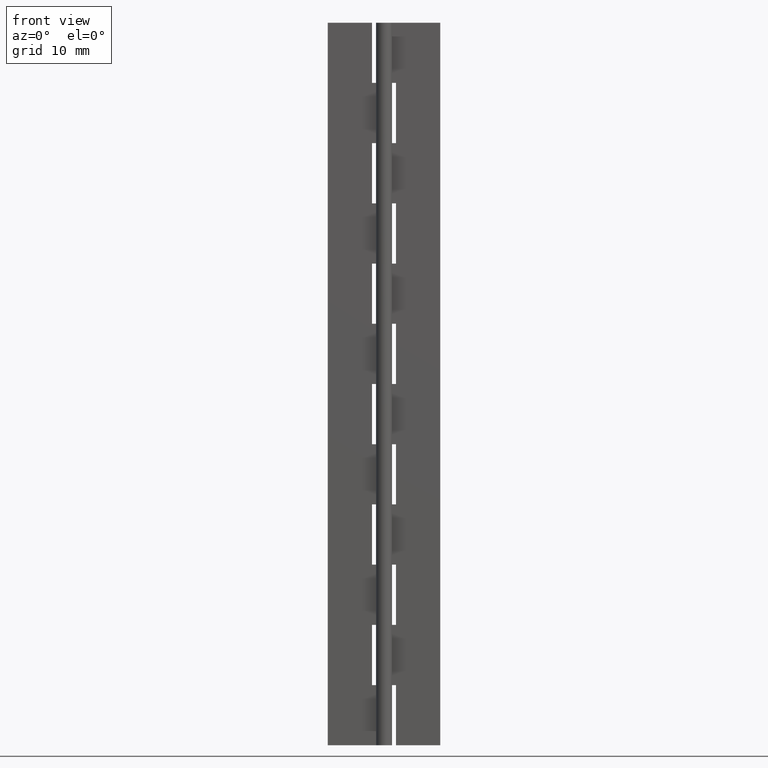
[diagram: clean part render]
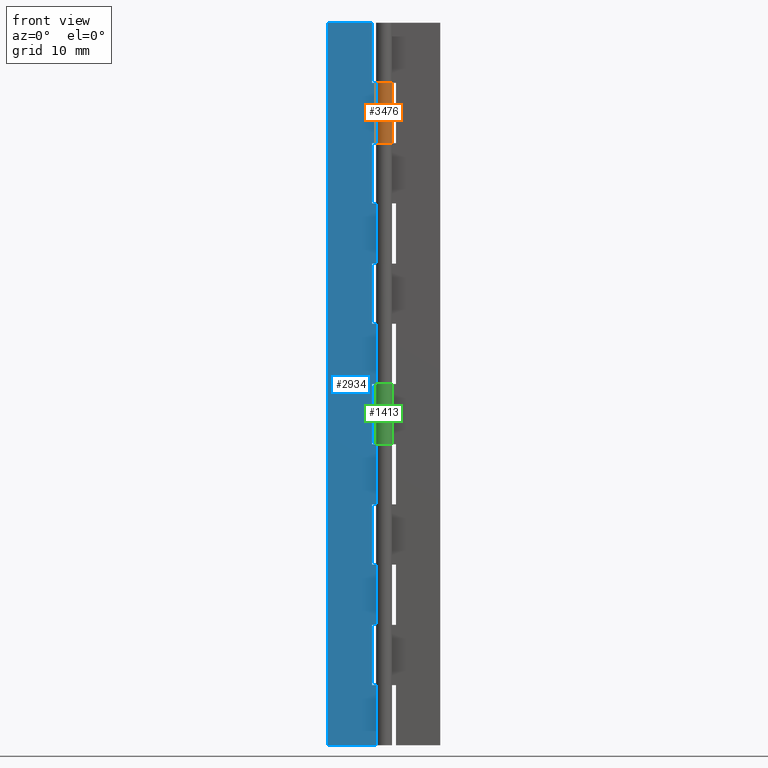
[diagram: same view with three faces highlighted in distinct colors, each labeled with its STEP entity id]
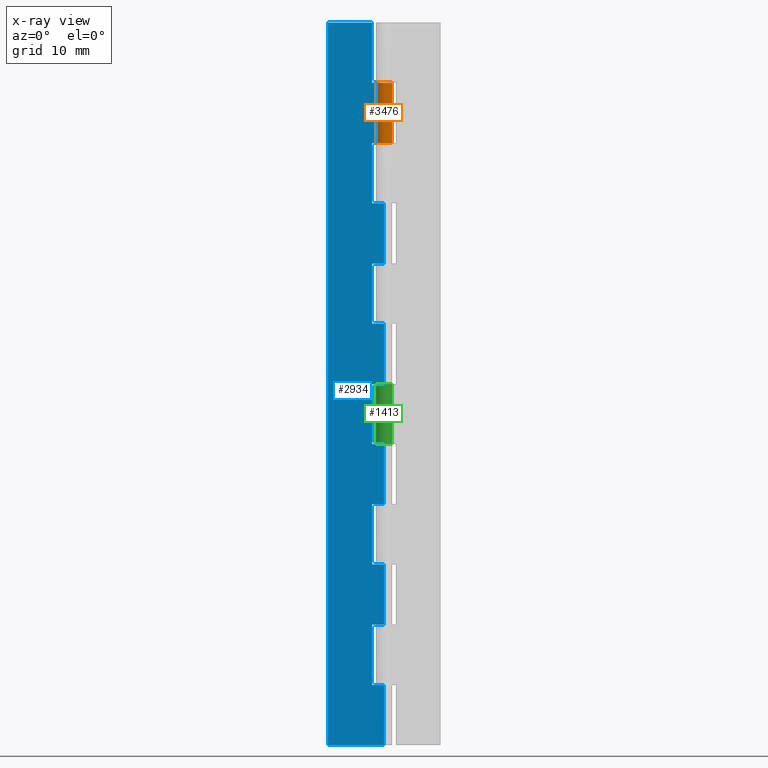
[diagram: x-ray of the same camera — body ghosted, the three highlighted faces saturated]
A machine part, front view with three faces highlighted in distinct colors.
The next image is the same camera in x-ray (body ghosted, the three faces saturated) — at least one of them is partly hidden behind the body in this view.
Their STEP definitions:

[orange] entity #3476 — the highlighted face is a freeform B-spline surface patch.
#1822=CARTESIAN_POINT('',(-0.893028554974588,0.450000000000000,82.500000000000000));
#1823=VERTEX_POINT('',#1822);
#1824=CARTESIAN_POINT('',(0.0,1.0,82.500000000000000));
#1825=VERTEX_POINT('',#1824);
#1826=CARTESIAN_POINT('',(-0.893028554974587,0.450000000000000,82.500000000000000));
#1827=CARTESIAN_POINT('',(-1.233273978153613,-0.225219730218403,82.500000000000000));
#1828=CARTESIAN_POINT('',(-0.676333153176143,-0.736595863357117,82.500000000000000));
#1829=CARTESIAN_POINT('',(-0.119392328198674,-1.247971996495830,82.500000000000000));
#1830=CARTESIAN_POINT('',(0.524404424085075,-0.851469318296321,82.500000000000000));
#1831=CARTESIAN_POINT('',(1.168201176368825,-0.454966640096811,82.500000000000000));
#1832=CARTESIAN_POINT('',(0.962151058383329,0.272516679951594,82.500000000000000));
#1833=CARTESIAN_POINT('',(0.756100940397833,1.0,82.500000000000000));
#1834=CARTESIAN_POINT('',(0.0,1.0,82.500000000000000));
#1842=(BOUNDED_CURVE()B_SPLINE_CURVE(2,(#1826,#1827,#1828,#1829,#1830,#1831,#1832,#1833,#1834),.UNSPECIFIED.,.F.,.U.)B_SPLINE_CURVE_WITH_KNOTS((3,2,2,2,3),(0.0,0.250000000000000,0.500000000000000,0.750000000000000,1.0),.UNSPECIFIED.)CURVE()GEOMETRIC_REPRESENTATION_ITEM()RATIONAL_B_SPLINE_CURVE((1.0,0.797658034483323,1.0,0.797658034483323,1.0,0.797658034483323,1.0,0.797658034483323,1.0))REPRESENTATION_ITEM(''));
#1843=EDGE_CURVE('',#1823,#1825,#1842,.T.);
#1892=CARTESIAN_POINT('',(0.0,1.0,75.0));
#1893=VERTEX_POINT('',#1892);
#1894=CARTESIAN_POINT('',(-0.893028554974588,0.450000000000000,75.0));
#1895=VERTEX_POINT('',#1894);
#1896=CARTESIAN_POINT('',(0.0,1.0,75.0));
#1897=CARTESIAN_POINT('',(0.756100940397833,1.0,75.0));
#1898=CARTESIAN_POINT('',(0.962151058383329,0.272516679951595,75.0));
#1899=CARTESIAN_POINT('',(1.168201176368825,-0.454966640096810,75.0));
#1900=CARTESIAN_POINT('',(0.524404424085076,-0.851469318296320,75.0));
#1901=CARTESIAN_POINT('',(-0.119392328198672,-1.247971996495830,75.0));
#1902=CARTESIAN_POINT('',(-0.676333153176142,-0.736595863357117,75.0));
#1903=CARTESIAN_POINT('',(-1.233273978153612,-0.225219730218405,75.0));
#1904=CARTESIAN_POINT('',(-0.893028554974588,0.449999999999999,75.0));
#1912=(BOUNDED_CURVE()B_SPLINE_CURVE(2,(#1896,#1897,#1898,#1899,#1900,#1901,#1902,#1903,#1904),.UNSPECIFIED.,.F.,.U.)B_SPLINE_CURVE_WITH_KNOTS((3,2,2,2,3),(0.0,0.250000000000000,0.500000000000000,0.750000000000000,1.0),.UNSPECIFIED.)CURVE()GEOMETRIC_REPRESENTATION_ITEM()RATIONAL_B_SPLINE_CURVE((1.0,0.797658034483323,1.0,0.797658034483323,1.0,0.797658034483323,1.0,0.797658034483323,1.0))REPRESENTATION_ITEM(''));
#1913=EDGE_CURVE('',#1893,#1895,#1912,.T.);
#2976=CARTESIAN_POINT('',(-0.893028554974588,0.450000000000000,82.500000000000000));
#2977=CARTESIAN_POINT('',(-0.893028554974588,0.450000000000000,75.0));
#2978=QUASI_UNIFORM_CURVE('',1,(#2976,#2977),.UNSPECIFIED.,.F.,.U.);
#2979=EDGE_CURVE('',#1823,#1895,#2978,.T.);
#3027=CARTESIAN_POINT('',(0.0,1.0,82.500000000000000));
#3028=CARTESIAN_POINT('',(0.0,1.0,75.0));
#3029=QUASI_UNIFORM_CURVE('',1,(#3027,#3028),.UNSPECIFIED.,.F.,.U.);
#3030=EDGE_CURVE('',#1825,#1893,#3029,.T.);
#3448=CARTESIAN_POINT('',(-0.889067610209338,0.457775910764923,82.687500000000014));
#3449=CARTESIAN_POINT('',(-0.889067610209338,0.457775910764923,74.807812499999997));
#3450=CARTESIAN_POINT('',(-1.434623696466522,-0.601773607761204,82.687500000000028));
#3451=CARTESIAN_POINT('',(-1.434623696466522,-0.601773607761204,74.807812499999997));
#3452=CARTESIAN_POINT('',(-0.296436295727977,-0.955052628170340,82.687500000000014));
#3453=CARTESIAN_POINT('',(-0.296436295727977,-0.955052628170340,74.807812499999997));
#3454=CARTESIAN_POINT('',(0.841751105010568,-1.308331648579477,82.687500000000028));
#3455=CARTESIAN_POINT('',(0.841751105010568,-1.308331648579477,74.807812499999997));
#3456=CARTESIAN_POINT('',(0.992018855304335,-0.126089613849340,82.687500000000014));
#3457=CARTESIAN_POINT('',(0.992018855304335,-0.126089613849340,74.807812499999997));
#3458=CARTESIAN_POINT('',(1.142286605598103,1.056152420880797,82.687500000000028));
#3459=CARTESIAN_POINT('',(1.142286605598103,1.056152420880797,74.807812499999997));
#3460=CARTESIAN_POINT('',(-0.048088237141686,0.998843091505670,82.687500000000014));
#3461=CARTESIAN_POINT('',(-0.048088237141686,0.998843091505670,74.807812499999997));
#3469=(BOUNDED_SURFACE()B_SPLINE_SURFACE(1,2,((#3448,#3450,#3452,#3454,#3456,#3458,#3460),(#3449,#3451,#3453,#3455,#3457,#3459,#3461)),.UNSPECIFIED.,.F.,.F.,.U.)B_SPLINE_SURFACE_WITH_KNOTS((2,2),(3,2,2,3),(0.0,7.879687500000023),(0.0,1.0,2.0,3.0),.UNSPECIFIED.)GEOMETRIC_REPRESENTATION_ITEM()RATIONAL_B_SPLINE_SURFACE(((1.0,0.642787609686539,1.0,0.642787609686539,1.0,0.642787609686539,1.0),(1.0,0.642787609686539,1.0,0.642787609686539,1.0,0.642787609686539,1.0)))REPRESENTATION_ITEM('')SURFACE());
#3470=ORIENTED_EDGE('',*,*,#1843,.F.);
#3471=ORIENTED_EDGE('',*,*,#2979,.T.);
#3472=ORIENTED_EDGE('',*,*,#1913,.F.);
#3473=ORIENTED_EDGE('',*,*,#3030,.F.);
#3474=EDGE_LOOP('',(#3470,#3471,#3472,#3473));
#3475=FACE_OUTER_BOUND('',#3474,.T.);
#3476=ADVANCED_FACE('',(#3475),#3469,.T.);

[blue] entity #2934 — the highlighted face is a freeform B-spline surface patch.
#1786=CARTESIAN_POINT('',(-1.500000000000000,0.499999999999945,90.0));
#1787=VERTEX_POINT('',#1786);
#1788=CARTESIAN_POINT('',(-1.500000000000000,0.499999999999945,82.500000000000000));
#1789=VERTEX_POINT('',#1788);
#1790=CARTESIAN_POINT('',(-1.500000000000000,0.499999999999945,90.0));
#1791=CARTESIAN_POINT('',(-1.500000000000000,0.499999999999945,82.500000000000000));
#1792=QUASI_UNIFORM_CURVE('',1,(#1790,#1791),.UNSPECIFIED.,.F.,.U.);
#1793=EDGE_CURVE('',#1787,#1789,#1792,.T.);
#1851=CARTESIAN_POINT('',(3.061230E-017,0.500000000000000,82.500000000000000));
#1852=VERTEX_POINT('',#1851);
#1853=CARTESIAN_POINT('',(-1.500000000000000,0.499999999999945,82.500000000000000));
#1854=CARTESIAN_POINT('',(3.061230E-017,0.500000000000000,82.500000000000000));
#1855=QUASI_UNIFORM_CURVE('',1,(#1853,#1854),.UNSPECIFIED.,.F.,.U.);
#1856=EDGE_CURVE('',#1789,#1852,#1855,.T.);
#1922=CARTESIAN_POINT('',(3.061516E-017,0.500000000000000,75.0));
#1923=VERTEX_POINT('',#1922);
#1943=CARTESIAN_POINT('',(-1.500000000000000,0.499999999999945,75.0));
#1944=VERTEX_POINT('',#1943);
#1945=CARTESIAN_POINT('',(3.061516E-017,0.500000000000000,75.0));
#1946=CARTESIAN_POINT('',(-1.500000000000000,0.499999999999945,75.0));
#1947=QUASI_UNIFORM_CURVE('',1,(#1945,#1946),.UNSPECIFIED.,.F.,.U.);
#1948=EDGE_CURVE('',#1923,#1944,#1947,.T.);
#1970=CARTESIAN_POINT('',(-1.500000000000000,0.499999999999945,67.500000000000000));
#1971=VERTEX_POINT('',#1970);
#1972=CARTESIAN_POINT('',(-1.500000000000000,0.499999999999945,75.0));
#1973=CARTESIAN_POINT('',(-1.500000000000000,0.499999999999945,67.500000000000000));
#1974=QUASI_UNIFORM_CURVE('',1,(#1972,#1973),.UNSPECIFIED.,.F.,.U.);
#1975=EDGE_CURVE('',#1944,#1971,#1974,.T.);
#2027=CARTESIAN_POINT('',(3.061230E-017,0.500000000000000,67.500000000000000));
#2028=VERTEX_POINT('',#2027);
#2029=CARTESIAN_POINT('',(-1.500000000000000,0.499999999999945,67.500000000000000));
#2030=CARTESIAN_POINT('',(3.061230E-017,0.500000000000000,67.500000000000000));
#2031=QUASI_UNIFORM_CURVE('',1,(#2029,#2030),.UNSPECIFIED.,.F.,.U.);
#2032=EDGE_CURVE('',#1971,#2028,#2031,.T.);
#2098=CARTESIAN_POINT('',(3.061516E-017,0.500000000000000,60.0));
#2099=VERTEX_POINT('',#2098);
#2119=CARTESIAN_POINT('',(-1.500000000000000,0.499999999999945,60.0));
#2120=VERTEX_POINT('',#2119);
#2121=CARTESIAN_POINT('',(3.061516E-017,0.500000000000000,60.0));
#2122=CARTESIAN_POINT('',(-1.500000000000000,0.499999999999945,60.0));
#2123=QUASI_UNIFORM_CURVE('',1,(#2121,#2122),.UNSPECIFIED.,.F.,.U.);
#2124=EDGE_CURVE('',#2099,#2120,#2123,.T.);
#2146=CARTESIAN_POINT('',(-1.500000000000000,0.499999999999945,52.500000000000000));
#2147=VERTEX_POINT('',#2146);
#2148=CARTESIAN_POINT('',(-1.500000000000000,0.499999999999945,60.0));
#2149=CARTESIAN_POINT('',(-1.500000000000000,0.499999999999945,52.500000000000000));
#2150=QUASI_UNIFORM_CURVE('',1,(#2148,#2149),.UNSPECIFIED.,.F.,.U.);
#2151=EDGE_CURVE('',#2120,#2147,#2150,.T.);
#2203=CARTESIAN_POINT('',(3.061230E-017,0.500000000000000,52.500000000000000));
#2204=VERTEX_POINT('',#2203);
#2205=CARTESIAN_POINT('',(-1.500000000000000,0.499999999999945,52.500000000000000));
#2206=CARTESIAN_POINT('',(3.061230E-017,0.500000000000000,52.500000000000000));
#2207=QUASI_UNIFORM_CURVE('',1,(#2205,#2206),.UNSPECIFIED.,.F.,.U.);
#2208=EDGE_CURVE('',#2147,#2204,#2207,.T.);
#2274=CARTESIAN_POINT('',(3.061516E-017,0.500000000000000,45.0));
#2275=VERTEX_POINT('',#2274);
#2295=CARTESIAN_POINT('',(-1.500000000000000,0.499999999999945,45.0));
#2296=VERTEX_POINT('',#2295);
#2297=CARTESIAN_POINT('',(3.061516E-017,0.500000000000000,45.0));
#2298=CARTESIAN_POINT('',(-1.500000000000000,0.499999999999945,45.0));
#2299=QUASI_UNIFORM_CURVE('',1,(#2297,#2298),.UNSPECIFIED.,.F.,.U.);
#2300=EDGE_CURVE('',#2275,#2296,#2299,.T.);
#2322=CARTESIAN_POINT('',(-1.500000000000000,0.499999999999945,37.500000000000000));
#2323=VERTEX_POINT('',#2322);
#2324=CARTESIAN_POINT('',(-1.500000000000000,0.499999999999945,45.0));
#2325=CARTESIAN_POINT('',(-1.500000000000000,0.499999999999945,37.500000000000000));
#2326=QUASI_UNIFORM_CURVE('',1,(#2324,#2325),.UNSPECIFIED.,.F.,.U.);
#2327=EDGE_CURVE('',#2296,#2323,#2326,.T.);
#2379=CARTESIAN_POINT('',(3.061230E-017,0.500000000000000,37.500000000000000));
#2380=VERTEX_POINT('',#2379);
#2381=CARTESIAN_POINT('',(-1.500000000000000,0.499999999999945,37.500000000000000));
#2382=CARTESIAN_POINT('',(3.061230E-017,0.500000000000000,37.500000000000000));
#2383=QUASI_UNIFORM_CURVE('',1,(#2381,#2382),.UNSPECIFIED.,.F.,.U.);
#2384=EDGE_CURVE('',#2323,#2380,#2383,.T.);
#2450=CARTESIAN_POINT('',(3.061516E-017,0.500000000000000,30.0));
#2451=VERTEX_POINT('',#2450);
#2471=CARTESIAN_POINT('',(-1.500000000000000,0.499999999999945,30.0));
#2472=VERTEX_POINT('',#2471);
#2473=CARTESIAN_POINT('',(3.061516E-017,0.500000000000000,30.0));
#2474=CARTESIAN_POINT('',(-1.500000000000000,0.499999999999945,30.0));
#2475=QUASI_UNIFORM_CURVE('',1,(#2473,#2474),.UNSPECIFIED.,.F.,.U.);
#2476=EDGE_CURVE('',#2451,#2472,#2475,.T.);
#2498=CARTESIAN_POINT('',(-1.500000000000000,0.499999999999945,22.500000000000000));
#2499=VERTEX_POINT('',#2498);
#2500=CARTESIAN_POINT('',(-1.500000000000000,0.499999999999945,30.0));
#2501=CARTESIAN_POINT('',(-1.500000000000000,0.499999999999945,22.500000000000000));
#2502=QUASI_UNIFORM_CURVE('',1,(#2500,#2501),.UNSPECIFIED.,.F.,.U.);
#2503=EDGE_CURVE('',#2472,#2499,#2502,.T.);
#2555=CARTESIAN_POINT('',(3.061230E-017,0.500000000000000,22.500000000000000));
#2556=VERTEX_POINT('',#2555);
#2557=CARTESIAN_POINT('',(-1.500000000000000,0.499999999999945,22.500000000000000));
#2558=CARTESIAN_POINT('',(3.061230E-017,0.500000000000000,22.500000000000000));
#2559=QUASI_UNIFORM_CURVE('',1,(#2557,#2558),.UNSPECIFIED.,.F.,.U.);
#2560=EDGE_CURVE('',#2499,#2556,#2559,.T.);
#2626=CARTESIAN_POINT('',(3.061516E-017,0.500000000000000,15.0));
#2627=VERTEX_POINT('',#2626);
#2647=CARTESIAN_POINT('',(-1.500000000000000,0.499999999999945,15.0));
#2648=VERTEX_POINT('',#2647);
#2649=CARTESIAN_POINT('',(3.061516E-017,0.500000000000000,15.0));
#2650=CARTESIAN_POINT('',(-1.500000000000000,0.499999999999945,15.0));
#2651=QUASI_UNIFORM_CURVE('',1,(#2649,#2650),.UNSPECIFIED.,.F.,.U.);
#2652=EDGE_CURVE('',#2627,#2648,#2651,.T.);
#2674=CARTESIAN_POINT('',(-1.500000000000000,0.499999999999945,7.500000000000000));
#2675=VERTEX_POINT('',#2674);
#2676=CARTESIAN_POINT('',(-1.500000000000000,0.499999999999945,15.0));
#2677=CARTESIAN_POINT('',(-1.500000000000000,0.499999999999945,7.500000000000000));
#2678=QUASI_UNIFORM_CURVE('',1,(#2676,#2677),.UNSPECIFIED.,.F.,.U.);
#2679=EDGE_CURVE('',#2648,#2675,#2678,.T.);
#2731=CARTESIAN_POINT('',(3.061230E-017,0.500000000000000,7.500000000000000));
#2732=VERTEX_POINT('',#2731);
#2733=CARTESIAN_POINT('',(-1.500000000000000,0.499999999999945,7.500000000000000));
#2734=CARTESIAN_POINT('',(3.061230E-017,0.500000000000000,7.500000000000000));
#2735=QUASI_UNIFORM_CURVE('',1,(#2733,#2734),.UNSPECIFIED.,.F.,.U.);
#2736=EDGE_CURVE('',#2675,#2732,#2735,.T.);
#2772=CARTESIAN_POINT('',(-7.0,0.500000000000000,0.0));
#2773=VERTEX_POINT('',#2772);
#2816=CARTESIAN_POINT('',(3.061516E-017,0.500000000000000,0.0));
#2817=VERTEX_POINT('',#2816);
#2837=CARTESIAN_POINT('',(3.061516E-017,0.500000000000000,0.0));
#2838=CARTESIAN_POINT('',(-7.0,0.500000000000000,0.0));
#2839=QUASI_UNIFORM_CURVE('',1,(#2837,#2838),.UNSPECIFIED.,.F.,.U.);
#2840=EDGE_CURVE('',#2817,#2773,#2839,.T.);
#2850=CARTESIAN_POINT('',(-7.0,0.500000000000000,90.0));
#2851=VERTEX_POINT('',#2850);
#2852=CARTESIAN_POINT('',(-1.500000000000000,0.499999999999945,90.0));
#2853=CARTESIAN_POINT('',(-7.0,0.500000000000000,90.0));
#2854=QUASI_UNIFORM_CURVE('',1,(#2852,#2853),.UNSPECIFIED.,.F.,.U.);
#2855=EDGE_CURVE('',#1787,#2851,#2854,.T.);
#2873=CARTESIAN_POINT('',(-7.349649986432643,0.500000000000000,94.495499825562533));
#2874=CARTESIAN_POINT('',(-7.349649986432643,0.500000000000000,-4.495502239550651));
#2875=CARTESIAN_POINT('',(0.349650174187273,0.500000000000000,94.495499825562533));
#2876=CARTESIAN_POINT('',(0.349650174187273,0.500000000000000,-4.495502239550651));
#2877=B_SPLINE_SURFACE_WITH_KNOTS('',1,1,((#2873,#2875),(#2874,#2876)),.UNSPECIFIED.,.F.,.F.,.U.,(2,2),(2,2),(0.0,98.991002065113179),(0.0,7.699300160619915),.UNSPECIFIED.);
#2878=ORIENTED_EDGE('',*,*,#1856,.F.);
#2879=ORIENTED_EDGE('',*,*,#1793,.F.);
#2880=ORIENTED_EDGE('',*,*,#2855,.T.);
#2881=CARTESIAN_POINT('',(-7.0,0.500000000000000,90.0));
#2882=CARTESIAN_POINT('',(-7.0,0.500000000000000,0.0));
#2883=QUASI_UNIFORM_CURVE('',1,(#2881,#2882),.UNSPECIFIED.,.F.,.U.);
#2884=EDGE_CURVE('',#2851,#2773,#2883,.T.);
#2885=ORIENTED_EDGE('',*,*,#2884,.T.);
#2886=ORIENTED_EDGE('',*,*,#2840,.F.);
#2887=CARTESIAN_POINT('',(3.061230E-017,0.500000000000000,7.500000000000000));
#2888=CARTESIAN_POINT('',(3.061516E-017,0.500000000000000,0.0));
#2889=QUASI_UNIFORM_CURVE('',1,(#2887,#2888),.UNSPECIFIED.,.F.,.U.);
#2890=EDGE_CURVE('',#2732,#2817,#2889,.T.);
#2891=ORIENTED_EDGE('',*,*,#2890,.F.);
#2892=ORIENTED_EDGE('',*,*,#2736,.F.);
#2893=ORIENTED_EDGE('',*,*,#2679,.F.);
#2894=ORIENTED_EDGE('',*,*,#2652,.F.);
#2895=CARTESIAN_POINT('',(3.061230E-017,0.500000000000000,22.500000000000000));
#2896=CARTESIAN_POINT('',(3.061516E-017,0.500000000000000,15.0));
#2897=QUASI_UNIFORM_CURVE('',1,(#2895,#2896),.UNSPECIFIED.,.F.,.U.);
#2898=EDGE_CURVE('',#2556,#2627,#2897,.T.);
#2899=ORIENTED_EDGE('',*,*,#2898,.F.);
#2900=ORIENTED_EDGE('',*,*,#2560,.F.);
#2901=ORIENTED_EDGE('',*,*,#2503,.F.);
#2902=ORIENTED_EDGE('',*,*,#2476,.F.);
#2903=CARTESIAN_POINT('',(3.061230E-017,0.500000000000000,37.500000000000000));
#2904=CARTESIAN_POINT('',(3.061516E-017,0.500000000000000,30.0));
#2905=QUASI_UNIFORM_CURVE('',1,(#2903,#2904),.UNSPECIFIED.,.F.,.U.);
#2906=EDGE_CURVE('',#2380,#2451,#2905,.T.);
#2907=ORIENTED_EDGE('',*,*,#2906,.F.);
#2908=ORIENTED_EDGE('',*,*,#2384,.F.);
#2909=ORIENTED_EDGE('',*,*,#2327,.F.);
#2910=ORIENTED_EDGE('',*,*,#2300,.F.);
#2911=CARTESIAN_POINT('',(3.061230E-017,0.500000000000000,52.500000000000000));
#2912=CARTESIAN_POINT('',(3.061516E-017,0.500000000000000,45.0));
#2913=QUASI_UNIFORM_CURVE('',1,(#2911,#2912),.UNSPECIFIED.,.F.,.U.);
#2914=EDGE_CURVE('',#2204,#2275,#2913,.T.);
#2915=ORIENTED_EDGE('',*,*,#2914,.F.);
#2916=ORIENTED_EDGE('',*,*,#2208,.F.);
#2917=ORIENTED_EDGE('',*,*,#2151,.F.);
#2918=ORIENTED_EDGE('',*,*,#2124,.F.);
#2919=CARTESIAN_POINT('',(3.061230E-017,0.500000000000000,67.500000000000000));
#2920=CARTESIAN_POINT('',(3.061516E-017,0.500000000000000,60.0));
#2921=QUASI_UNIFORM_CURVE('',1,(#2919,#2920),.UNSPECIFIED.,.F.,.U.);
#2922=EDGE_CURVE('',#2028,#2099,#2921,.T.);
#2923=ORIENTED_EDGE('',*,*,#2922,.F.);
#2924=ORIENTED_EDGE('',*,*,#2032,.F.);
#2925=ORIENTED_EDGE('',*,*,#1975,.F.);
#2926=ORIENTED_EDGE('',*,*,#1948,.F.);
#2927=CARTESIAN_POINT('',(3.061230E-017,0.500000000000000,82.500000000000000));
#2928=CARTESIAN_POINT('',(3.061516E-017,0.500000000000000,75.0));
#2929=QUASI_UNIFORM_CURVE('',1,(#2927,#2928),.UNSPECIFIED.,.F.,.U.);
#2930=EDGE_CURVE('',#1852,#1923,#2929,.T.);
#2931=ORIENTED_EDGE('',*,*,#2930,.F.);
#2932=EDGE_LOOP('',(#2878,#2879,#2880,#2885,#2886,#2891,#2892,#2893,#2894,#2899,#2900,#2901,#2902,#2907,#2908,#2909,#2910,#2915,#2916,#2917,#2918,#2923,#2924,#2925,#2926,#2931));
#2933=FACE_OUTER_BOUND('',#2932,.T.);
#2934=ADVANCED_FACE('',(#2933),#2877,.T.);

[green] entity #1413 — the highlighted face is a freeform B-spline surface patch.
#507=CARTESIAN_POINT('',(0.0,1.0,45.0));
#508=VERTEX_POINT('',#507);
#509=CARTESIAN_POINT('',(0.893028554974594,0.449999999999989,45.0));
#510=VERTEX_POINT('',#509);
#511=CARTESIAN_POINT('',(0.0,1.0,45.0));
#512=CARTESIAN_POINT('',(-0.756100940397830,1.0,45.0));
#513=CARTESIAN_POINT('',(-0.962151058383328,0.272516679951598,45.0));
#514=CARTESIAN_POINT('',(-1.168201176368826,-0.454966640096804,45.0));
#515=CARTESIAN_POINT('',(-0.524404424085081,-0.851469318296317,45.0));
#516=CARTESIAN_POINT('',(0.119392328198663,-1.247971996495829,45.0));
#517=CARTESIAN_POINT('',(0.676333153176136,-0.736595863357123,45.0));
#518=CARTESIAN_POINT('',(1.233273978153608,-0.225219730218417,45.0));
#519=CARTESIAN_POINT('',(0.893028554974594,0.449999999999988,45.0));
#527=(BOUNDED_CURVE()B_SPLINE_CURVE(2,(#511,#512,#513,#514,#515,#516,#517,#518,#519),.UNSPECIFIED.,.F.,.U.)B_SPLINE_CURVE_WITH_KNOTS((3,2,2,2,3),(0.0,0.250000000000000,0.500000000000000,0.750000000000000,1.0),.UNSPECIFIED.)CURVE()GEOMETRIC_REPRESENTATION_ITEM()RATIONAL_B_SPLINE_CURVE((1.0,0.797658034483324,1.0,0.797658034483324,1.0,0.797658034483324,1.0,0.797658034483324,1.0))REPRESENTATION_ITEM(''));
#528=EDGE_CURVE('',#508,#510,#527,.T.);
#577=CARTESIAN_POINT('',(0.893028554974594,0.449999999999989,37.500000000000000));
#578=VERTEX_POINT('',#577);
#579=CARTESIAN_POINT('',(0.0,1.0,37.500000000000000));
#580=VERTEX_POINT('',#579);
#581=CARTESIAN_POINT('',(0.893028554974593,0.449999999999989,37.500000000000000));
#582=CARTESIAN_POINT('',(1.233273978153608,-0.225219730218417,37.500000000000007));
#583=CARTESIAN_POINT('',(0.676333153176136,-0.736595863357123,37.500000000000000));
#584=CARTESIAN_POINT('',(0.119392328198664,-1.247971996495829,37.500000000000007));
#585=CARTESIAN_POINT('',(-0.524404424085081,-0.851469318296317,37.500000000000000));
#586=CARTESIAN_POINT('',(-1.168201176368826,-0.454966640096804,37.500000000000007));
#587=CARTESIAN_POINT('',(-0.962151058383328,0.272516679951598,37.500000000000000));
#588=CARTESIAN_POINT('',(-0.756100940397831,1.0,37.500000000000007));
#589=CARTESIAN_POINT('',(0.0,1.0,37.500000000000000));
#597=(BOUNDED_CURVE()B_SPLINE_CURVE(2,(#581,#582,#583,#584,#585,#586,#587,#588,#589),.UNSPECIFIED.,.F.,.U.)B_SPLINE_CURVE_WITH_KNOTS((3,2,2,2,3),(0.0,0.250000000000000,0.500000000000000,0.750000000000000,1.0),.UNSPECIFIED.)CURVE()GEOMETRIC_REPRESENTATION_ITEM()RATIONAL_B_SPLINE_CURVE((1.0,0.797658034483323,1.0,0.797658034483323,1.0,0.797658034483323,1.0,0.797658034483323,1.0))REPRESENTATION_ITEM(''));
#598=EDGE_CURVE('',#578,#580,#597,.T.);
#1371=CARTESIAN_POINT('',(0.893028554974594,0.449999999999989,45.0));
#1372=CARTESIAN_POINT('',(0.893028554974594,0.449999999999989,37.500000000000000));
#1373=QUASI_UNIFORM_CURVE('',1,(#1371,#1372),.UNSPECIFIED.,.F.,.U.);
#1374=EDGE_CURVE('',#510,#578,#1373,.T.);
#1381=CARTESIAN_POINT('',(0.008726535498373,0.999961923064171,45.187500000000007));
#1382=CARTESIAN_POINT('',(0.008726535498373,0.999961923064171,37.307812499999990));
#1383=CARTESIAN_POINT('',(-1.182981678770767,1.010361803095258,45.187500000000007));
#1384=CARTESIAN_POINT('',(-1.182981678770767,1.010361803095258,37.307812499999990));
#1385=CARTESIAN_POINT('',(-0.986285601537231,-0.165047605860678,45.187500000000007));
#1386=CARTESIAN_POINT('',(-0.986285601537231,-0.165047605860678,37.307812499999990));
#1387=CARTESIAN_POINT('',(-0.789589524303695,-1.340457014816614,45.187500000000007));
#1388=CARTESIAN_POINT('',(-0.789589524303695,-1.340457014816614,37.307812499999990));
#1389=CARTESIAN_POINT('',(0.333806859233771,-0.942641491092178,45.187500000000007));
#1390=CARTESIAN_POINT('',(0.333806859233771,-0.942641491092178,37.307812499999990));
#1391=CARTESIAN_POINT('',(1.457203242771237,-0.544825967367742,45.187500000000007));
#1392=CARTESIAN_POINT('',(1.457203242771237,-0.544825967367742,37.307812499999990));
#1393=CARTESIAN_POINT('',(0.870355695939899,0.492423560103467,45.187500000000007));
#1394=CARTESIAN_POINT('',(0.870355695939899,0.492423560103467,37.307812499999990));
#1402=(BOUNDED_SURFACE()B_SPLINE_SURFACE(1,2,((#1381,#1383,#1385,#1387,#1389,#1391,#1393),(#1382,#1384,#1386,#1388,#1390,#1392,#1394)),.UNSPECIFIED.,.F.,.F.,.U.)B_SPLINE_SURFACE_WITH_KNOTS((2,2),(3,2,2,3),(0.0,7.879687500000023),(0.0,1.0,2.0,3.0),.UNSPECIFIED.)GEOMETRIC_REPRESENTATION_ITEM()RATIONAL_B_SPLINE_SURFACE(((1.0,0.642787609686539,1.0,0.642787609686539,1.0,0.642787609686539,1.0),(1.0,0.642787609686539,1.0,0.642787609686539,1.0,0.642787609686539,1.0)))REPRESENTATION_ITEM('')SURFACE());
#1403=ORIENTED_EDGE('',*,*,#528,.F.);
#1404=CARTESIAN_POINT('',(0.0,1.0,45.0));
#1405=CARTESIAN_POINT('',(0.0,1.0,37.500000000000000));
#1406=QUASI_UNIFORM_CURVE('',1,(#1404,#1405),.UNSPECIFIED.,.F.,.U.);
#1407=EDGE_CURVE('',#508,#580,#1406,.T.);
#1408=ORIENTED_EDGE('',*,*,#1407,.T.);
#1409=ORIENTED_EDGE('',*,*,#598,.F.);
#1410=ORIENTED_EDGE('',*,*,#1374,.F.);
#1411=EDGE_LOOP('',(#1403,#1408,#1409,#1410));
#1412=FACE_OUTER_BOUND('',#1411,.T.);
#1413=ADVANCED_FACE('',(#1412),#1402,.T.);